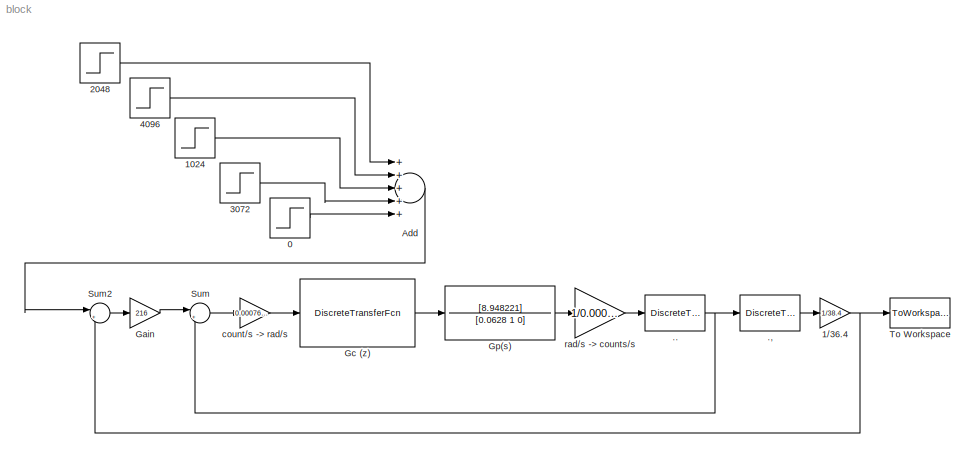
MODEL block
KIND model
BLOCK [DiscreteTransferFcn] .,
  Denominator = [1 -1]
  InputPortMap = u0
  Numerator = [0.004 0]
  Ports = [1, 1]
  SID = 59
BLOCK [DiscreteTransferFcn] ..
  Denominator = [0.004 0]
  InputPortMap = u0
  Numerator = [1 -1]
  Ports = [1, 1]
  SID = 58
  SampleTime = 0.004
BLOCK [Step] 0
  After = -30720
  SID = 64
  SampleTime = 0.004
  Time = 6.4
BLOCK [Gain] 1//36.4
  Gain = 1/38.4
  OutDataTypeStr = Inherit: Inherit via internal rule
  ParamDataTypeStr = Inherit: Inherit via internal rule
  SID = 60
  SampleTime = 0.004
  SaturateOnIntegerOverflow = off
BLOCK [Step] 1024
  After = 10240*4
  SID = 62
  SampleTime = 0.004
  Time = 3.2
BLOCK [Step] 2048
  After = 10240*6
  SID = 35
  SampleTime = 0.004
  Time = 0
BLOCK [Step] 3072
  After = 10240*-5
  SID = 63
  SampleTime = 0.004
  Time = 4.8
BLOCK [Step] 4096
  After = -10240*2
  SID = 65
  SampleTime = 0.004
  Time = 1.6
BLOCK [Sum] Add
  InputSameDT = off
  Inputs = +++++
  OutDataTypeStr = Inherit: Inherit via internal rule
  Ports = [5, 1]
  SID = 61
  SaturateOnIntegerOverflow = off
BLOCK [Gain] Gain
  Gain = 216
  OutDataTypeStr = Inherit: Inherit via internal rule
  ParamDataTypeStr = Inherit: Inherit via internal rule
  SID = 53
  SampleTime = 0.004
  SaturateOnIntegerOverflow = off
BLOCK [DiscreteTransferFcn] Gc (z)
  Denominator = [1 -0.95769 -0.04233]
  InputPortMap = u0
  Numerator = [0.3493 -0.33983]
  Ports = [1, 1]
  SID = 4
  SampleTime = 0.004
  Tag = z
BLOCK [TransferFcn] Gp(s)
  Denominator = [0.0628 1 0]
  Numerator = [8.948221]
  SID = 14
BLOCK [Sum] Sum
  IconShape = round
  InputSameDT = off
  Inputs = |+-
  OutDataTypeStr = Inherit: Inherit via internal rule
  Ports = [2, 1]
  SID = 7
  SampleTime = 0.004
  SaturateOnIntegerOverflow = off
BLOCK [Sum] Sum2
  IconShape = round
  InputSameDT = off
  Inputs = |+-
  OutDataTypeStr = Inherit: Inherit via internal rule
  Ports = [2, 1]
  SID = 40
  SampleTime = 0.004
  SaturateOnIntegerOverflow = off
BLOCK [ToWorkspace] To Workspace
  MaxDataPoints = inf
  Ports = [1]
  SID = 19
  SampleTime = 0.004
  VariableName = simout
BLOCK [Gain] count//s -> rad//s
  Gain = 0.0007669903939
  OutDataTypeStr = Inherit: Inherit via internal rule
  ParamDataTypeStr = Inherit: Inherit via internal rule
  SID = 54
  SampleTime = 0.004
  SaturateOnIntegerOverflow = off
BLOCK [Gain] rad//s -> counts//s
  Gain = 1/0.0007669903939
  OutDataTypeStr = Inherit: Inherit via internal rule
  ParamDataTypeStr = Inherit: Inherit via internal rule
  SID = 15
  SampleTime = 0.004
  SaturateOnIntegerOverflow = off
LINE .,:1 -> 1//36.4:1
NET ..:1 -> .,:1, Sum:2
LINE 0:1 -> Add:5
NET 1//36.4:1 -> Sum2:2, To Workspace:1
LINE 1024:1 -> Add:3
LINE 2048:1 -> Add:1
LINE 3072:1 -> Add:4
LINE 4096:1 -> Add:2
LINE Add:1 -> Sum2:1
LINE Gain:1 -> Sum:1
LINE Gc (z):1 -> Gp(s):1
LINE Gp(s):1 -> rad//s -> counts//s:1
LINE Sum2:1 -> Gain:1
LINE Sum:1 -> count//s -> rad//s:1
LINE count//s -> rad//s:1 -> Gc (z):1
LINE rad//s -> counts//s:1 -> ..:1
note: NET lines group one-source signal fan-out (src -> all destinations, sorted); 1:1 wires keep LINE
